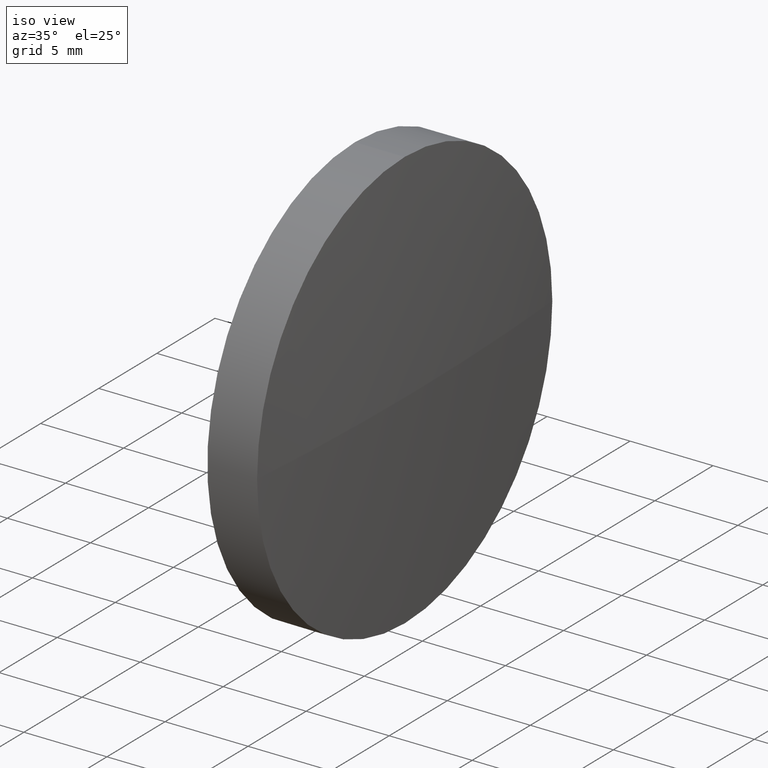
[diagram: clean part render]
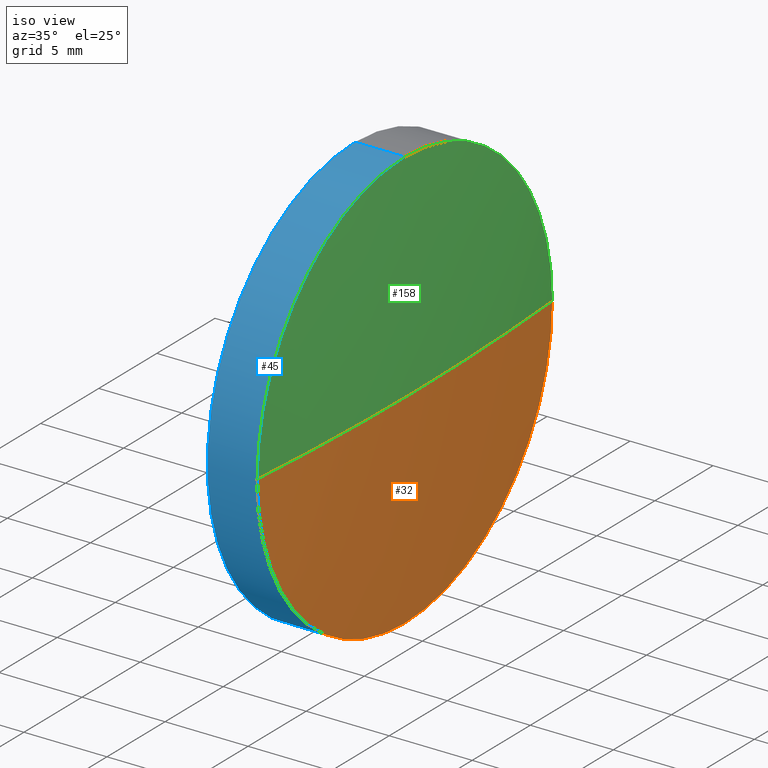
[diagram: same view with three faces highlighted in distinct colors, each labeled with its STEP entity id]
A machine part, iso view with three faces highlighted in distinct colors.
Their STEP definitions:

[orange] entity #32 — the highlighted spherical surface has radius 160.445 mm.
#1 = ORIENTED_EDGE ( 'NONE', *, *, #91, .F. ) ;
#6 = CIRCLE ( 'NONE', #171, 160.4449999999999900 ) ;
#7 = CARTESIAN_POINT ( 'NONE',  ( 119.2736064308381100, 65.23355492641221100, 0.0000000000000000000 ) ) ;
#8 = VERTEX_POINT ( 'NONE', #145 ) ;
#9 = DIRECTION ( 'NONE',  ( 0.0000000000000000000, 1.224646799147353200E-016, -1.000000000000000000 ) ) ;
#10 = DIRECTION ( 'NONE',  ( 1.000000000000000000, 0.0000000000000000000, 0.0000000000000000000 ) ) ;
#24 = CARTESIAN_POINT ( 'NONE',  ( -41.17139356916187900, 65.23355492641219700, 0.0000000000000000000 ) ) ;
#27 = DIRECTION ( 'NONE',  ( 0.0000000000000000000, 0.0000000000000000000, 1.000000000000000000 ) ) ;
#29 = DIRECTION ( 'NONE',  ( -0.0000000000000000000, 0.0000000000000000000, 1.000000000000000000 ) ) ;
#32 = ADVANCED_FACE ( 'NONE', ( #64 ), #168, .T. ) ;
#33 = VERTEX_POINT ( 'NONE', #54 ) ;
#34 = CIRCLE ( 'NONE', #96, 160.4449999999999900 ) ;
#39 = CARTESIAN_POINT ( 'NONE',  ( 118.7701833425342200, 77.93355492641215700, 0.0000000000000000000 ) ) ;
#42 = CARTESIAN_POINT ( 'NONE',  ( 118.7701833425342200, 65.23355492641219700, 0.0000000000000000000 ) ) ;
#44 = EDGE_CURVE ( 'NONE', #178, #8, #95, .T. ) ;
#48 = AXIS2_PLACEMENT_3D ( 'NONE', #42, #150, #27 ) ;
#54 = CARTESIAN_POINT ( 'NONE',  ( 118.7701833425342200, 52.53355492641223600, -1.555301434917133900E-015 ) ) ;
#56 = DIRECTION ( 'NONE',  ( 0.0000000000000000000, 0.0000000000000000000, 1.000000000000000000 ) ) ;
#57 = CARTESIAN_POINT ( 'NONE',  ( 118.7701833425342200, 65.23355492641219700, 0.0000000000000000000 ) ) ;
#63 = VERTEX_POINT ( 'NONE', #7 ) ;
#64 = FACE_OUTER_BOUND ( 'NONE', #186, .T. ) ;
#79 = ORIENTED_EDGE ( 'NONE', *, *, #44, .F. ) ;
#82 = DIRECTION ( 'NONE',  ( 0.0000000000000000000, 1.000000000000000000, 0.0000000000000000000 ) ) ;
#89 = CARTESIAN_POINT ( 'NONE',  ( -41.17139356916187900, 65.23355492641219700, 0.0000000000000000000 ) ) ;
#91 = EDGE_CURVE ( 'NONE', #63, #178, #6, .T. ) ;
#95 = CIRCLE ( 'NONE', #162, 12.70000000000000300 ) ;
#96 = AXIS2_PLACEMENT_3D ( 'NONE', #89, #9, #184 ) ;
#107 = DIRECTION ( 'NONE',  ( -0.0000000000000000000, 0.0000000000000000000, -1.000000000000000000 ) ) ;
#120 = DIRECTION ( 'NONE',  ( -1.000000000000000000, -0.0000000000000000000, -0.0000000000000000000 ) ) ;
#126 = CARTESIAN_POINT ( 'NONE',  ( -41.17139356916187900, 65.23355492641219700, 0.0000000000000000000 ) ) ;
#144 = CIRCLE ( 'NONE', #48, 12.70000000000000300 ) ;
#145 = CARTESIAN_POINT ( 'NONE',  ( 118.7701833425342200, 65.23355492641219700, -12.70000000000000300 ) ) ;
#149 = ORIENTED_EDGE ( 'NONE', *, *, #166, .F. ) ;
#150 = DIRECTION ( 'NONE',  ( -1.000000000000000000, -0.0000000000000000000, -0.0000000000000000000 ) ) ;
#151 = AXIS2_PLACEMENT_3D ( 'NONE', #24, #107, #82 ) ;
#162 = AXIS2_PLACEMENT_3D ( 'NONE', #57, #120, #56 ) ;
#166 = EDGE_CURVE ( 'NONE', #8, #33, #144, .T. ) ;
#168 = SPHERICAL_SURFACE ( 'NONE', #151, 160.4449999999999900 ) ;
#171 = AXIS2_PLACEMENT_3D ( 'NONE', #126, #29, #10 ) ;
#174 = ORIENTED_EDGE ( 'NONE', *, *, #183, .T. ) ;
#178 = VERTEX_POINT ( 'NONE', #39 ) ;
#183 = EDGE_CURVE ( 'NONE', #63, #33, #34, .T. ) ;
#184 = DIRECTION ( 'NONE',  ( 0.0000000000000000000, 1.000000000000000000, 1.224646799147353500E-016 ) ) ;
#186 = EDGE_LOOP ( 'NONE', ( #1, #174, #149, #79 ) ) ;

[blue] entity #45 — the highlighted cylindrical surface (partial cylindrical patch) has radius 12.7 mm, axis along (-1, -0, -0).
#2 = EDGE_CURVE ( 'NONE', #8, #50, #66, .T. ) ;
#5 = DIRECTION ( 'NONE',  ( -1.000000000000000000, -0.0000000000000000000, -0.0000000000000000000 ) ) ;
#8 = VERTEX_POINT ( 'NONE', #145 ) ;
#11 = CIRCLE ( 'NONE', #14, 12.70000000000000300 ) ;
#12 = DIRECTION ( 'NONE',  ( -1.000000000000000000, -0.0000000000000000000, -0.0000000000000000000 ) ) ;
#14 = AXIS2_PLACEMENT_3D ( 'NONE', #97, #12, #112 ) ;
#16 = ORIENTED_EDGE ( 'NONE', *, *, #2, .F. ) ;
#22 = FACE_OUTER_BOUND ( 'NONE', #138, .T. ) ;
#23 = CARTESIAN_POINT ( 'NONE',  ( 110.1653732284884500, 65.23355492641219700, 0.0000000000000000000 ) ) ;
#25 = VECTOR ( 'NONE', #36, 1000.000000000000000 ) ;
#27 = DIRECTION ( 'NONE',  ( 0.0000000000000000000, 0.0000000000000000000, 1.000000000000000000 ) ) ;
#33 = VERTEX_POINT ( 'NONE', #54 ) ;
#36 = DIRECTION ( 'NONE',  ( -1.000000000000000000, -0.0000000000000000000, -0.0000000000000000000 ) ) ;
#40 = EDGE_CURVE ( 'NONE', #176, #72, #116, .T. ) ;
#42 = CARTESIAN_POINT ( 'NONE',  ( 118.7701833425342200, 65.23355492641219700, 0.0000000000000000000 ) ) ;
#45 = ADVANCED_FACE ( 'NONE', ( #22 ), #117, .T. ) ;
#48 = AXIS2_PLACEMENT_3D ( 'NONE', #42, #150, #27 ) ;
#49 = CIRCLE ( 'NONE', #179, 12.70000000000000300 ) ;
#50 = VERTEX_POINT ( 'NONE', #69 ) ;
#51 = ORIENTED_EDGE ( 'NONE', *, *, #106, .T. ) ;
#54 = CARTESIAN_POINT ( 'NONE',  ( 118.7701833425342200, 52.53355492641223600, -1.555301434917133900E-015 ) ) ;
#66 = LINE ( 'NONE', #132, #172 ) ;
#69 = CARTESIAN_POINT ( 'NONE',  ( 115.7736064308381300, 65.23355492641219700, -12.70000000000000300 ) ) ;
#70 = AXIS2_PLACEMENT_3D ( 'NONE', #23, #133, #118 ) ;
#72 = VERTEX_POINT ( 'NONE', #134 ) ;
#75 = DIRECTION ( 'NONE',  ( -1.000000000000000000, -0.0000000000000000000, -0.0000000000000000000 ) ) ;
#77 = ORIENTED_EDGE ( 'NONE', *, *, #115, .F. ) ;
#97 = CARTESIAN_POINT ( 'NONE',  ( 115.7736064308381300, 65.23355492641219700, 0.0000000000000000000 ) ) ;
#101 = CARTESIAN_POINT ( 'NONE',  ( 118.7701833425342200, 65.23355492641219700, 0.0000000000000000000 ) ) ;
#106 = EDGE_CURVE ( 'NONE', #33, #176, #49, .T. ) ;
#112 = DIRECTION ( 'NONE',  ( 0.0000000000000000000, 0.0000000000000000000, 1.000000000000000000 ) ) ;
#115 = EDGE_CURVE ( 'NONE', #50, #72, #11, .T. ) ;
#116 = LINE ( 'NONE', #165, #25 ) ;
#117 = CYLINDRICAL_SURFACE ( 'NONE', #70, 12.70000000000000300 ) ;
#118 = DIRECTION ( 'NONE',  ( 0.0000000000000000000, 0.0000000000000000000, 1.000000000000000000 ) ) ;
#123 = DIRECTION ( 'NONE',  ( 0.0000000000000000000, 0.0000000000000000000, 1.000000000000000000 ) ) ;
#132 = CARTESIAN_POINT ( 'NONE',  ( 110.1653732284884500, 65.23355492641219700, -12.70000000000000300 ) ) ;
#133 = DIRECTION ( 'NONE',  ( -1.000000000000000000, -0.0000000000000000000, -0.0000000000000000000 ) ) ;
#134 = CARTESIAN_POINT ( 'NONE',  ( 115.7736064308381300, 65.23355492641219700, 12.70000000000000300 ) ) ;
#138 = EDGE_LOOP ( 'NONE', ( #16, #147, #51, #157, #77 ) ) ;
#144 = CIRCLE ( 'NONE', #48, 12.70000000000000300 ) ;
#145 = CARTESIAN_POINT ( 'NONE',  ( 118.7701833425342200, 65.23355492641219700, -12.70000000000000300 ) ) ;
#147 = ORIENTED_EDGE ( 'NONE', *, *, #166, .T. ) ;
#150 = DIRECTION ( 'NONE',  ( -1.000000000000000000, -0.0000000000000000000, -0.0000000000000000000 ) ) ;
#157 = ORIENTED_EDGE ( 'NONE', *, *, #40, .T. ) ;
#165 = CARTESIAN_POINT ( 'NONE',  ( 110.1653732284884500, 65.23355492641219700, 12.70000000000000300 ) ) ;
#166 = EDGE_CURVE ( 'NONE', #8, #33, #144, .T. ) ;
#172 = VECTOR ( 'NONE', #5, 1000.000000000000000 ) ;
#176 = VERTEX_POINT ( 'NONE', #180 ) ;
#179 = AXIS2_PLACEMENT_3D ( 'NONE', #101, #75, #123 ) ;
#180 = CARTESIAN_POINT ( 'NONE',  ( 118.7701833425342200, 65.23355492641219700, 12.70000000000000300 ) ) ;

[green] entity #158 — the highlighted spherical surface has radius 160.445 mm.
#6 = CIRCLE ( 'NONE', #171, 160.4449999999999900 ) ;
#7 = CARTESIAN_POINT ( 'NONE',  ( 119.2736064308381100, 65.23355492641221100, 0.0000000000000000000 ) ) ;
#9 = DIRECTION ( 'NONE',  ( 0.0000000000000000000, 1.224646799147353200E-016, -1.000000000000000000 ) ) ;
#10 = DIRECTION ( 'NONE',  ( 1.000000000000000000, 0.0000000000000000000, 0.0000000000000000000 ) ) ;
#29 = DIRECTION ( 'NONE',  ( -0.0000000000000000000, 0.0000000000000000000, 1.000000000000000000 ) ) ;
#33 = VERTEX_POINT ( 'NONE', #54 ) ;
#34 = CIRCLE ( 'NONE', #96, 160.4449999999999900 ) ;
#38 = EDGE_LOOP ( 'NONE', ( #114, #94, #46, #81 ) ) ;
#39 = CARTESIAN_POINT ( 'NONE',  ( 118.7701833425342200, 77.93355492641215700, 0.0000000000000000000 ) ) ;
#41 = SPHERICAL_SURFACE ( 'NONE', #65, 160.4449999999999900 ) ;
#46 = ORIENTED_EDGE ( 'NONE', *, *, #58, .F. ) ;
#49 = CIRCLE ( 'NONE', #179, 12.70000000000000300 ) ;
#54 = CARTESIAN_POINT ( 'NONE',  ( 118.7701833425342200, 52.53355492641223600, -1.555301434917133900E-015 ) ) ;
#58 = EDGE_CURVE ( 'NONE', #176, #178, #163, .T. ) ;
#63 = VERTEX_POINT ( 'NONE', #7 ) ;
#65 = AXIS2_PLACEMENT_3D ( 'NONE', #85, #90, #127 ) ;
#75 = DIRECTION ( 'NONE',  ( -1.000000000000000000, -0.0000000000000000000, -0.0000000000000000000 ) ) ;
#81 = ORIENTED_EDGE ( 'NONE', *, *, #106, .F. ) ;
#85 = CARTESIAN_POINT ( 'NONE',  ( -41.17139356916187900, 65.23355492641219700, 0.0000000000000000000 ) ) ;
#89 = CARTESIAN_POINT ( 'NONE',  ( -41.17139356916187900, 65.23355492641219700, 0.0000000000000000000 ) ) ;
#90 = DIRECTION ( 'NONE',  ( -0.0000000000000000000, 0.0000000000000000000, -1.000000000000000000 ) ) ;
#91 = EDGE_CURVE ( 'NONE', #63, #178, #6, .T. ) ;
#94 = ORIENTED_EDGE ( 'NONE', *, *, #91, .T. ) ;
#96 = AXIS2_PLACEMENT_3D ( 'NONE', #89, #9, #184 ) ;
#101 = CARTESIAN_POINT ( 'NONE',  ( 118.7701833425342200, 65.23355492641219700, 0.0000000000000000000 ) ) ;
#106 = EDGE_CURVE ( 'NONE', #33, #176, #49, .T. ) ;
#110 = DIRECTION ( 'NONE',  ( -1.000000000000000000, -0.0000000000000000000, -0.0000000000000000000 ) ) ;
#114 = ORIENTED_EDGE ( 'NONE', *, *, #183, .F. ) ;
#123 = DIRECTION ( 'NONE',  ( 0.0000000000000000000, 0.0000000000000000000, 1.000000000000000000 ) ) ;
#126 = CARTESIAN_POINT ( 'NONE',  ( -41.17139356916187900, 65.23355492641219700, 0.0000000000000000000 ) ) ;
#127 = DIRECTION ( 'NONE',  ( 0.0000000000000000000, 1.000000000000000000, 0.0000000000000000000 ) ) ;
#137 = DIRECTION ( 'NONE',  ( 0.0000000000000000000, 0.0000000000000000000, 1.000000000000000000 ) ) ;
#153 = FACE_OUTER_BOUND ( 'NONE', #38, .T. ) ;
#158 = ADVANCED_FACE ( 'NONE', ( #153 ), #41, .T. ) ;
#159 = AXIS2_PLACEMENT_3D ( 'NONE', #182, #110, #137 ) ;
#163 = CIRCLE ( 'NONE', #159, 12.70000000000000300 ) ;
#171 = AXIS2_PLACEMENT_3D ( 'NONE', #126, #29, #10 ) ;
#176 = VERTEX_POINT ( 'NONE', #180 ) ;
#178 = VERTEX_POINT ( 'NONE', #39 ) ;
#179 = AXIS2_PLACEMENT_3D ( 'NONE', #101, #75, #123 ) ;
#180 = CARTESIAN_POINT ( 'NONE',  ( 118.7701833425342200, 65.23355492641219700, 12.70000000000000300 ) ) ;
#182 = CARTESIAN_POINT ( 'NONE',  ( 118.7701833425342200, 65.23355492641219700, 0.0000000000000000000 ) ) ;
#183 = EDGE_CURVE ( 'NONE', #63, #33, #34, .T. ) ;
#184 = DIRECTION ( 'NONE',  ( 0.0000000000000000000, 1.000000000000000000, 1.224646799147353500E-016 ) ) ;